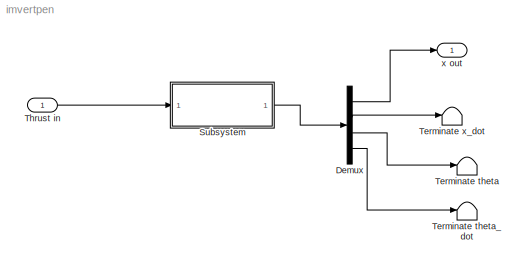
MODEL imvertpen
KIND model
BLOCK [Demux] Demux
  DisplayOption = bar
  Ports = [1, 4]
  SID = 12
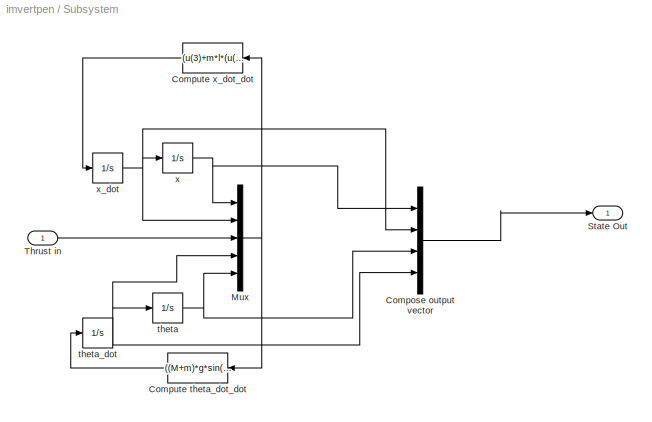
BLOCK [SubSystem] Subsystem
  Ports = [1, 1]
  RequestExecContextInheritance = off
  SID = 1
  Variant = off
BLOCK [Mux] Subsystem/Compose output vector
  DisplayOption = bar
  Ports = [4, 1]
  SID = 11
BLOCK [Fcn] Subsystem/Compute theta_dot_dot
  Expr = ((M+m)*g*sin(u(5))-u*cos(u(5))-m*l*(u(4))^2*sin(u(5))*cos(u(5)))/(l*(M+m*sin(u(4))^2)
  SID = 6
BLOCK [Fcn] Subsystem/Compute x_dot_dot
  Expr = (u(3)+m*l*(u(4)^2)*sin(u(5)) - m*g*cos(u(5))*sin(u(5)))/(M+m*sin(u(5))^2)
  SID = 5
BLOCK [Mux] Subsystem/Mux
  DisplayOption = bar
  Inputs = 5
  Ports = [5, 1]
  SID = 4
BLOCK [Outport] Subsystem/State Out
  IconDisplay = Port number
  SID = 3
BLOCK [Inport] Subsystem/Thrust in
  IconDisplay = Port number
  SID = 2
BLOCK [Integrator] Subsystem/theta
  Ports = [1, 1]
  SID = 8
BLOCK [Integrator] Subsystem/theta_dot
  Ports = [1, 1]
  SID = 7
BLOCK [Integrator] Subsystem/x
  Ports = [1, 1]
  SID = 10
BLOCK [Integrator] Subsystem/x_dot
  Ports = [1, 1]
  SID = 9
BLOCK [Terminator] Terminate theta
  SID = 16
BLOCK [Terminator] Terminate theta_dot
  SID = 17
BLOCK [Terminator] Terminate x_dot
  SID = 15
BLOCK [Inport] Thrust in
  IconDisplay = Port number
  SID = 14
BLOCK [Outport] x out
  IconDisplay = Port number
  SID = 13
LINE Demux:1 -> x out:1
LINE Demux:2 -> Terminate x_dot:1
LINE Demux:3 -> Terminate theta:1
LINE Demux:4 -> Terminate theta_dot:1
LINE Subsystem/Compose output vector:1 -> Subsystem/State Out:1
LINE Subsystem/Compute theta_dot_dot:1 -> Subsystem/theta_dot:1
LINE Subsystem/Compute x_dot_dot:1 -> Subsystem/x_dot:1
NET Subsystem/Mux:1 -> Subsystem/Compute theta_dot_dot:1, Subsystem/Compute x_dot_dot:1
LINE Subsystem/Thrust in:1 -> Subsystem/Mux:3
NET Subsystem/theta:1 -> Subsystem/Compose output vector:3, Subsystem/Mux:5
NET Subsystem/theta_dot:1 -> Subsystem/Compose output vector:4, Subsystem/Mux:4, Subsystem/theta:1
NET Subsystem/x:1 -> Subsystem/Compose output vector:1, Subsystem/Mux:1
NET Subsystem/x_dot:1 -> Subsystem/Compose output vector:2, Subsystem/Mux:2, Subsystem/x:1
LINE Subsystem:1 -> Demux:1
LINE Thrust in:1 -> Subsystem:1
note: NET lines group one-source signal fan-out (src -> all destinations, sorted); 1:1 wires keep LINE
